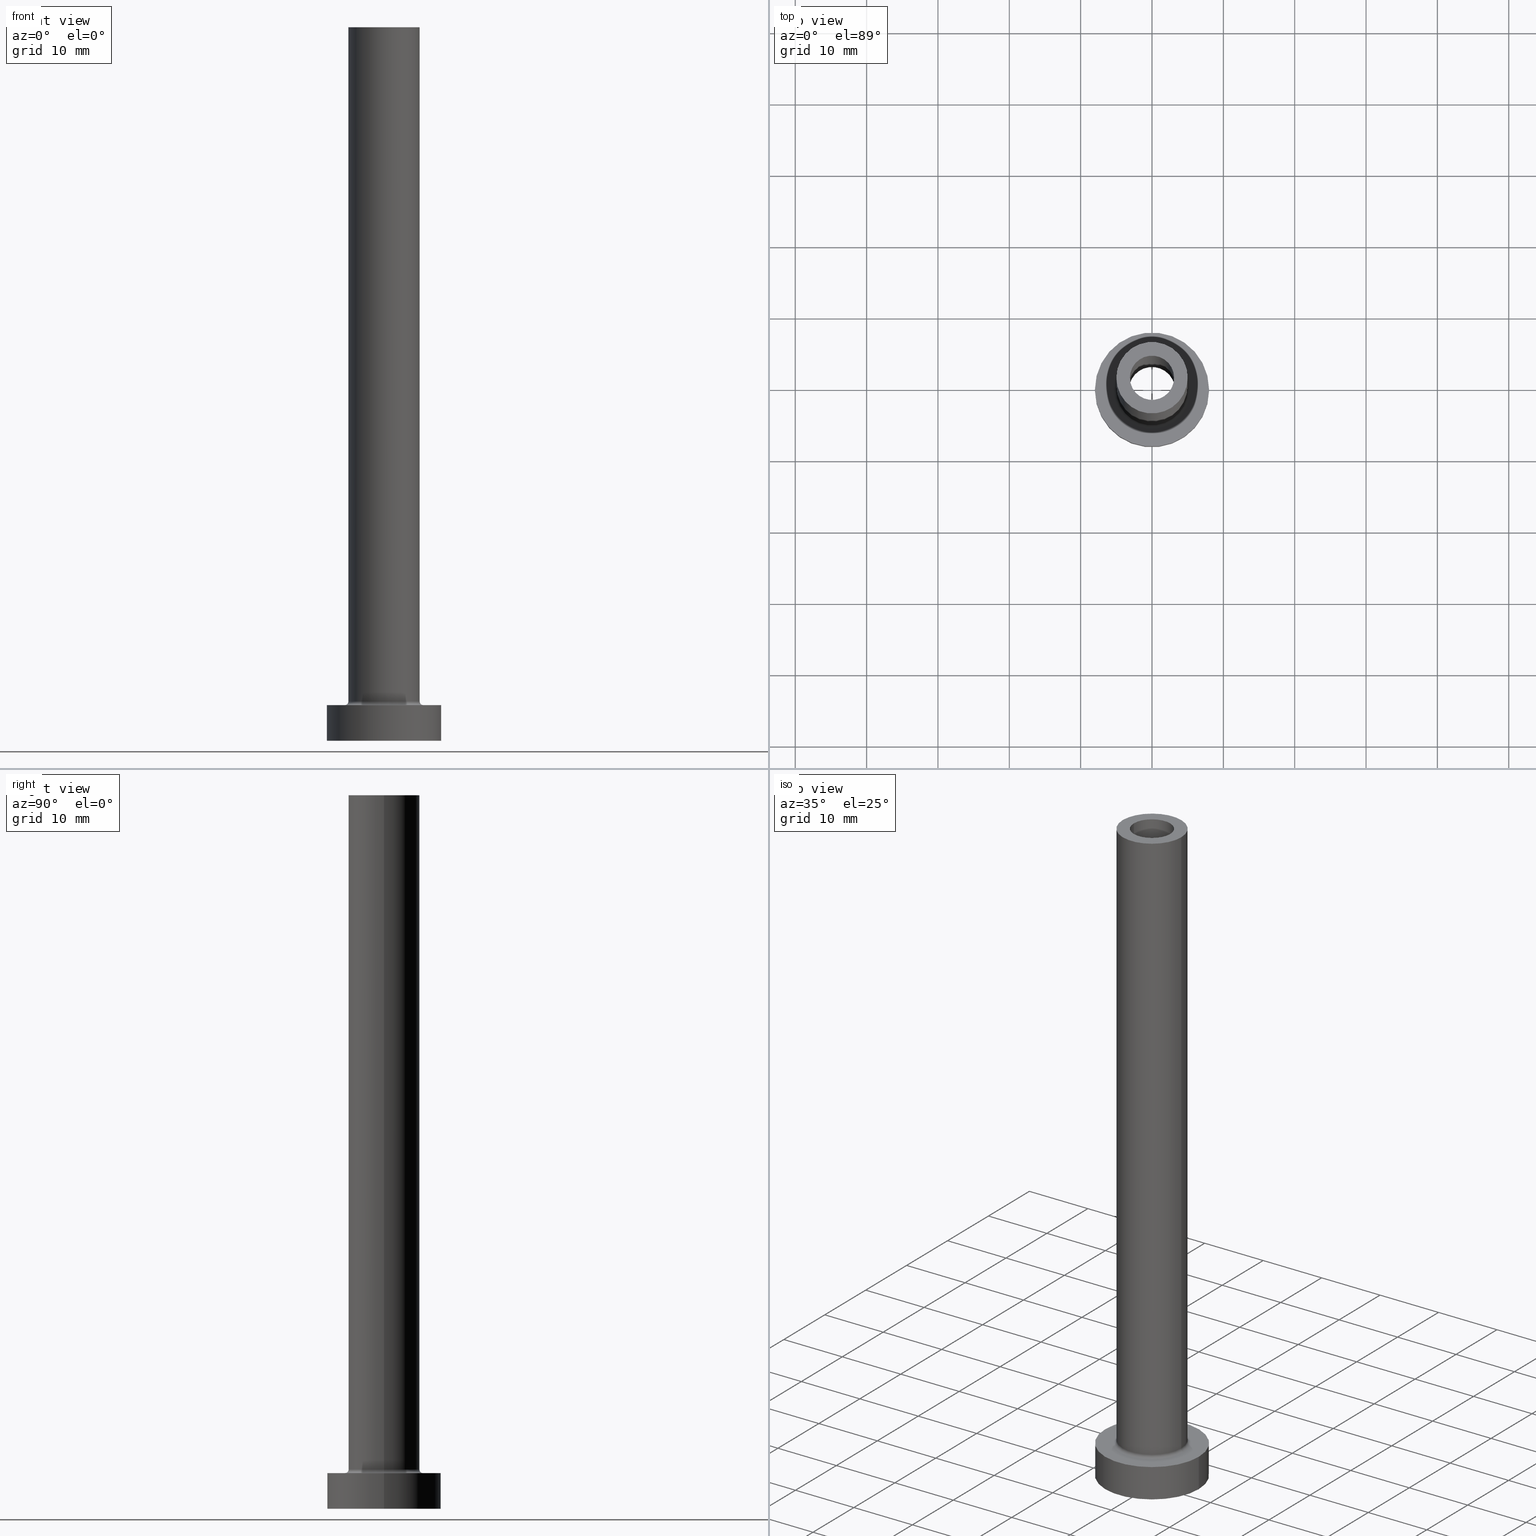
[diagram: canonical four-view strip — front | top / right | iso, engineering-drawing reading convention]
A machine part, canonical four-view strip (front | top / right | iso — engineering-drawing reading convention). The complete STEP part file that produces these views, byte-faithful:
ISO-10303-21;
HEADER;
FILE_DESCRIPTION (( 'STEP AP203' ),
    '1' );
FILE_NAME ('ddac.STEP',
    '2023-02-13T09:13:04',
    ( '' ),
    ( '' ),
    'SwSTEP 2.0',
    'SolidWorks 2019',
    '' );
FILE_SCHEMA (( 'CONFIG_CONTROL_DESIGN' ));
ENDSEC;

DATA;
#1 = ORIENTED_EDGE ( 'NONE', *, *, #399, .F. ) ;
#2 = EDGE_CURVE ( 'NONE', #245, #405, #45, .T. ) ;
#3 = ORIENTED_EDGE ( 'NONE', *, *, #385, .T. ) ;
#4 = EDGE_CURVE ( 'NONE', #33, #114, #303, .T. ) ;
#5 = AXIS2_PLACEMENT_3D ( 'NONE', #148, #439, #8 ) ;
#6 = FACE_OUTER_BOUND ( 'NONE', #132, .T. ) ;
#7 = ORIENTED_EDGE ( 'NONE', *, *, #32, .T. ) ;
#8 = DIRECTION ( 'NONE',  ( 1.000000000000000000, 0.000000000000000000, 0.000000000000000000 ) ) ;
#9 = ORIENTED_EDGE ( 'NONE', *, *, #84, .T. ) ;
#10 = EDGE_CURVE ( 'NONE', #44, #169, #312, .T. ) ;
#11 = DIRECTION ( 'NONE',  ( 0.000000000000000000, 0.000000000000000000, -1.000000000000000000 ) ) ;
#12 =( GEOMETRIC_REPRESENTATION_CONTEXT ( 3 ) GLOBAL_UNCERTAINTY_ASSIGNED_CONTEXT ( ( #452 ) ) GLOBAL_UNIT_ASSIGNED_CONTEXT ( ( #424, #344, #429 ) ) REPRESENTATION_CONTEXT ( 'NONE', 'WORKASPACE' ) );
#13 = CARTESIAN_POINT ( 'NONE',  ( 0.000000000000000000, 0.000000000000000000, 5.000000000000000000 ) ) ;
#14 = CALENDAR_DATE ( 2023, 13, 2 ) ;
#15 = ORIENTED_EDGE ( 'NONE', *, *, #244, .T. ) ;
#16 = CARTESIAN_POINT ( 'NONE',  ( -5.000000000000000000, 0.000000000000000000, 100.0000000000000000 ) ) ;
#17 = DIRECTION ( 'NONE',  ( 1.000000000000000000, 0.000000000000000000, 0.000000000000000000 ) ) ;
#18 = EDGE_LOOP ( 'NONE', ( #279, #242 ) ) ;
#19 = PERSON_AND_ORGANIZATION_ROLE ( 'creator' ) ;
#20 = DIRECTION ( 'NONE',  ( -0.000000000000000000, -0.000000000000000000, -1.000000000000000000 ) ) ;
#21 = AXIS2_PLACEMENT_3D ( 'NONE', #176, #326, #222 ) ;
#22 = CARTESIAN_POINT ( 'NONE',  ( 3.100000000000000089, 3.796405077356793932E-16, 100.0000000000000000 ) ) ;
#23 = DIRECTION ( 'NONE',  ( 1.000000000000000000, 0.000000000000000000, 0.000000000000000000 ) ) ;
#24 = EDGE_CURVE ( 'NONE', #207, #406, #270, .T. ) ;
#25 = ORIENTED_EDGE ( 'NONE', *, *, #106, .F. ) ;
#26 = FACE_OUTER_BOUND ( 'NONE', #227, .T. ) ;
#27 = AXIS2_PLACEMENT_3D ( 'NONE', #428, #205, #346 ) ;
#28 = AXIS2_PLACEMENT_3D ( 'NONE', #119, #191, #230 ) ;
#29 = CARTESIAN_POINT ( 'NONE',  ( -3.250000000000000444, 0.000000000000000000, 55.00000000000000711 ) ) ;
#30 = ORIENTED_EDGE ( 'NONE', *, *, #244, .F. ) ;
#31 = CARTESIAN_POINT ( 'NONE',  ( 0.000000000000000000, 0.000000000000000000, 100.0000000000000000 ) ) ;
#32 = EDGE_CURVE ( 'NONE', #269, #57, #416, .T. ) ;
#33 = VERTEX_POINT ( 'NONE', #83 ) ;
#34 = CC_DESIGN_PERSON_AND_ORGANIZATION_ASSIGNMENT ( #197, #445, ( #438 ) ) ;
#35 = EDGE_LOOP ( 'NONE', ( #81, #150 ) ) ;
#36 = CARTESIAN_POINT ( 'NONE',  ( 0.000000000000000000, 0.000000000000000000, 55.00000000000000711 ) ) ;
#37 = EDGE_CURVE ( 'NONE', #170, #433, #129, .T. ) ;
#38 = DIRECTION ( 'NONE',  ( -1.000000000000000000, 1.224646799147351482E-16, 0.000000000000000000 ) ) ;
#39 = VECTOR ( 'NONE', #199, 1000.000000000000000 ) ;
#40 = LOCAL_TIME ( 10, 13, 4.000000000000000000, #53 ) ;
#41 = ORIENTED_EDGE ( 'NONE', *, *, #322, .F. ) ;
#42 = CARTESIAN_POINT ( 'NONE',  ( -3.100000000000000089, 0.000000000000000000, 55.00000000000000711 ) ) ;
#43 = CARTESIAN_POINT ( 'NONE',  ( -3.250000000000000444, 0.000000000000000000, 0.000000000000000000 ) ) ;
#44 = VERTEX_POINT ( 'NONE', #54 ) ;
#45 = CIRCLE ( 'NONE', #310, 8.000000000000000000 ) ;
#46 = APPLICATION_PROTOCOL_DEFINITION ( 'international standard', 'config_control_design', 1994, #268 ) ;
#47 = AXIS2_PLACEMENT_3D ( 'NONE', #414, #182, #17 ) ;
#48 = CC_DESIGN_SECURITY_CLASSIFICATION ( #192, ( #438 ) ) ;
#49 = DIRECTION ( 'NONE',  ( 0.000000000000000000, 0.000000000000000000, 1.000000000000000000 ) ) ;
#50 = CALENDAR_DATE ( 2023, 13, 2 ) ;
#51 = COORDINATED_UNIVERSAL_TIME_OFFSET ( 1, 0, .AHEAD. ) ;
#52 = VECTOR ( 'NONE', #159, 1000.000000000000000 ) ;
#53 = COORDINATED_UNIVERSAL_TIME_OFFSET ( 1, 0, .AHEAD. ) ;
#54 = CARTESIAN_POINT ( 'NONE',  ( 3.100000000000000089, 3.796405077356793932E-16, 100.0000000000000000 ) ) ;
#55 = APPROVAL_DATE_TIME ( #297, #208 ) ;
#56 = CARTESIAN_POINT ( 'NONE',  ( 0.000000000000000000, 0.000000000000000000, 55.00000000000000711 ) ) ;
#57 = VERTEX_POINT ( 'NONE', #277 ) ;
#58 = LINE ( 'NONE', #126, #142 ) ;
#59 = FACE_OUTER_BOUND ( 'NONE', #349, .T. ) ;
#60 = ORIENTED_EDGE ( 'NONE', *, *, #376, .T. ) ;
#61 = AXIS2_PLACEMENT_3D ( 'NONE', #219, #105, #101 ) ;
#62 = VERTEX_POINT ( 'NONE', #29 ) ;
#63 = CARTESIAN_POINT ( 'NONE',  ( 0.000000000000000000, 0.000000000000000000, 5.000000000000000000 ) ) ;
#64 = DIRECTION ( 'NONE',  ( 0.000000000000000000, 0.000000000000000000, 1.000000000000000000 ) ) ;
#65 = TOROIDAL_SURFACE ( 'NONE', #356, 5.500000000000000000, 0.5000000000000000000 ) ;
#66 = LOCAL_TIME ( 10, 13, 4.000000000000000000, #51 ) ;
#67 = EDGE_CURVE ( 'NONE', #62, #269, #363, .T. ) ;
#68 = DIRECTION ( 'NONE',  ( 0.000000000000000000, 0.000000000000000000, 1.000000000000000000 ) ) ;
#69 = CYLINDRICAL_SURFACE ( 'NONE', #284, 3.250000000000000444 ) ;
#70 = CARTESIAN_POINT ( 'NONE',  ( 0.000000000000000000, 0.000000000000000000, 100.0000000000000000 ) ) ;
#71 = ADVANCED_FACE ( 'NONE', ( #203, #59 ), #451, .T. ) ;
#72 = AXIS2_PLACEMENT_3D ( 'NONE', #353, #254, #237 ) ;
#73 = AXIS2_PLACEMENT_3D ( 'NONE', #443, #379, #161 ) ;
#74 = EDGE_LOOP ( 'NONE', ( #25, #117, #184, #181 ) ) ;
#75 = CC_DESIGN_PERSON_AND_ORGANIZATION_ASSIGNMENT ( #265, #300, ( #320 ) ) ;
#76 = APPROVAL_STATUS ( 'not_yet_approved' ) ;
#77 = CARTESIAN_POINT ( 'NONE',  ( 0.000000000000000000, 0.000000000000000000, 100.0000000000000000 ) ) ;
#78 = AXIS2_PLACEMENT_3D ( 'NONE', #423, #164, #160 ) ;
#79 = PERSON_AND_ORGANIZATION_ROLE ( 'classification_officer' ) ;
#80 = CARTESIAN_POINT ( 'NONE',  ( 5.000000000000000000, 6.123233995736766282E-16, 100.0000000000000000 ) ) ;
#81 = ORIENTED_EDGE ( 'NONE', *, *, #352, .T. ) ;
#82 = FACE_OUTER_BOUND ( 'NONE', #434, .T. ) ;
#83 = CARTESIAN_POINT ( 'NONE',  ( -3.100000000000000089, 0.000000000000000000, 100.0000000000000000 ) ) ;
#84 = EDGE_CURVE ( 'NONE', #57, #389, #216, .T. ) ;
#85 = ORIENTED_EDGE ( 'NONE', *, *, #291, .F. ) ;
#86 = CIRCLE ( 'NONE', #283, 3.250000000000000444 ) ;
#87 = SHAPE_DEFINITION_REPRESENTATION ( #390, #96 ) ;
#88 = CARTESIAN_POINT ( 'NONE',  ( -5.000000000000000000, 0.000000000000000000, 100.0000000000000000 ) ) ;
#89 = PERSON_AND_ORGANIZATION_ROLE ( 'creator' ) ;
#90 = CARTESIAN_POINT ( 'NONE',  ( 0.000000000000000000, 0.000000000000000000, 5.000000000000000000 ) ) ;
#91 = DIRECTION ( 'NONE',  ( 0.000000000000000000, 0.000000000000000000, -1.000000000000000000 ) ) ;
#92 = VERTEX_POINT ( 'NONE', #308 ) ;
#93 = DIRECTION ( 'NONE',  ( 1.000000000000000000, 0.000000000000000000, -0.000000000000000000 ) ) ;
#94 = ORIENTED_EDGE ( 'NONE', *, *, #220, .F. ) ;
#95 = CIRCLE ( 'NONE', #162, 8.000000000000000000 ) ;
#96 = ADVANCED_BREP_SHAPE_REPRESENTATION ( 'ddac', ( #158, #28 ), #12 ) ;
#97 = ORIENTED_EDGE ( 'NONE', *, *, #2, .T. ) ;
#98 = ORIENTED_EDGE ( 'NONE', *, *, #330, .T. ) ;
#99 = FACE_OUTER_BOUND ( 'NONE', #210, .T. ) ;
#100 = EDGE_CURVE ( 'NONE', #193, #316, #189, .T. ) ;
#101 = DIRECTION ( 'NONE',  ( 1.000000000000000000, 0.000000000000000000, 0.000000000000000000 ) ) ;
#102 = AXIS2_PLACEMENT_3D ( 'NONE', #31, #461, #93 ) ;
#103 = CC_DESIGN_APPROVAL ( #190, ( #192 ) ) ;
#104 = CARTESIAN_POINT ( 'NONE',  ( 0.000000000000000000, 0.000000000000000000, 5.000000000000000000 ) ) ;
#105 = DIRECTION ( 'NONE',  ( -0.000000000000000000, -0.000000000000000000, -1.000000000000000000 ) ) ;
#106 = EDGE_CURVE ( 'NONE', #207, #170, #235, .T. ) ;
#107 = DIRECTION ( 'NONE',  ( 0.000000000000000000, 0.000000000000000000, -1.000000000000000000 ) ) ;
#108 = EDGE_CURVE ( 'NONE', #140, #92, #387, .T. ) ;
#109 = AXIS2_PLACEMENT_3D ( 'NONE', #407, #49, #411 ) ;
#110 = ORIENTED_EDGE ( 'NONE', *, *, #229, .F. ) ;
#111 = DIRECTION ( 'NONE',  ( -0.000000000000000000, -0.000000000000000000, -1.000000000000000000 ) ) ;
#112 = CARTESIAN_POINT ( 'NONE',  ( -5.500000000000000000, 6.735557395310442023E-16, 5.000000000000002665 ) ) ;
#113 = EDGE_CURVE ( 'NONE', #405, #140, #301, .T. ) ;
#114 = VERTEX_POINT ( 'NONE', #42 ) ;
#115 = PLANE ( 'NONE',  #73 ) ;
#116 = CIRCLE ( 'NONE', #21, 8.000000000000000000 ) ;
#117 = ORIENTED_EDGE ( 'NONE', *, *, #24, .T. ) ;
#118 = CYLINDRICAL_SURFACE ( 'NONE', #334, 8.000000000000000000 ) ;
#119 = CARTESIAN_POINT ( 'NONE',  ( 0.000000000000000000, 0.000000000000000000, 0.000000000000000000 ) ) ;
#120 = ORIENTED_EDGE ( 'NONE', *, *, #32, .F. ) ;
#121 = CALENDAR_DATE ( 2023, 13, 2 ) ;
#122 = DIRECTION ( 'NONE',  ( 1.000000000000000000, 0.000000000000000000, -0.000000000000000000 ) ) ;
#123 = APPROVAL_DATE_TIME ( #421, #190 ) ;
#124 = DIRECTION ( 'NONE',  ( 1.000000000000000000, 0.000000000000000000, 0.000000000000000000 ) ) ;
#125 = APPROVAL_ROLE ( '' ) ;
#126 = CARTESIAN_POINT ( 'NONE',  ( -3.250000000000000444, 0.000000000000000000, 64.19238815542512100 ) ) ;
#127 = CC_DESIGN_PERSON_AND_ORGANIZATION_ASSIGNMENT ( #410, #79, ( #192 ) ) ;
#128 = CIRCLE ( 'NONE', #288, 3.100000000000000089 ) ;
#129 = LINE ( 'NONE', #88, #39 ) ;
#130 = AXIS2_PLACEMENT_3D ( 'NONE', #215, #354, #299 ) ;
#131 = DIRECTION ( 'NONE',  ( 0.000000000000000000, 0.000000000000000000, -1.000000000000000000 ) ) ;
#132 = EDGE_LOOP ( 'NONE', ( #243, #7, #9, #281 ) ) ;
#133 = EDGE_LOOP ( 'NONE', ( #415, #1, #336, #313 ) ) ;
#134 = CIRCLE ( 'NONE', #171, 5.000000000000000000 ) ;
#135 = ORIENTED_EDGE ( 'NONE', *, *, #113, .T. ) ;
#136 = PLANE ( 'NONE',  #275 ) ;
#137 = FACE_BOUND ( 'NONE', #35, .T. ) ;
#138 = VECTOR ( 'NONE', #144, 1000.000000000000000 ) ;
#139 = LOCAL_TIME ( 10, 13, 4.000000000000000000, #276 ) ;
#140 = VERTEX_POINT ( 'NONE', #141 ) ;
#141 = CARTESIAN_POINT ( 'NONE',  ( -8.000000000000000000, 0.000000000000000000, 0.000000000000000000 ) ) ;
#142 = VECTOR ( 'NONE', #339, 1000.000000000000000 ) ;
#143 = ORIENTED_EDGE ( 'NONE', *, *, #100, .F. ) ;
#144 = DIRECTION ( 'NONE',  ( -0.000000000000000000, -0.000000000000000000, -1.000000000000000000 ) ) ;
#145 = EDGE_CURVE ( 'NONE', #92, #140, #116, .T. ) ;
#146 = DATE_AND_TIME ( #14, #66 ) ;
#147 = CARTESIAN_POINT ( 'NONE',  ( -8.000000000000000000, 0.000000000000000000, 5.000000000000000000 ) ) ;
#148 = CARTESIAN_POINT ( 'NONE',  ( 0.000000000000000000, 0.000000000000000000, 5.000000000000000000 ) ) ;
#149 = APPLICATION_PROTOCOL_DEFINITION ( 'international standard', 'config_control_design', 1994, #278 ) ;
#150 = ORIENTED_EDGE ( 'NONE', *, *, #413, .T. ) ;
#151 = CIRCLE ( 'NONE', #374, 5.000000000000000000 ) ;
#152 = ADVANCED_FACE ( 'NONE', ( #266 ), #368, .T. ) ;
#153 = ORIENTED_EDGE ( 'NONE', *, *, #229, .T. ) ;
#154 = DIRECTION ( 'NONE',  ( 0.000000000000000000, 0.000000000000000000, 1.000000000000000000 ) ) ;
#155 = APPROVAL_STATUS ( 'not_yet_approved' ) ;
#156 = PRODUCT_RELATED_PRODUCT_CATEGORY ( 'detail', '', ( #320 ) ) ;
#157 = DIRECTION ( 'NONE',  ( -0.000000000000000000, -0.000000000000000000, -1.000000000000000000 ) ) ;
#158 = MANIFOLD_SOLID_BREP ( 'Odebrat vysunut�m4', #248 ) ;
#159 = DIRECTION ( 'NONE',  ( 0.000000000000000000, 0.000000000000000000, -1.000000000000000000 ) ) ;
#160 = DIRECTION ( 'NONE',  ( 0.000000000000000000, 0.000000000000000000, -1.000000000000000000 ) ) ;
#161 = DIRECTION ( 'NONE',  ( 1.000000000000000000, 0.000000000000000000, -0.000000000000000000 ) ) ;
#162 = AXIS2_PLACEMENT_3D ( 'NONE', #104, #211, #440 ) ;
#163 = EDGE_LOOP ( 'NONE', ( #384, #345 ) ) ;
#164 = DIRECTION ( 'NONE',  ( 0.000000000000000000, -1.000000000000000000, 0.000000000000000000 ) ) ;
#165 = ADVANCED_FACE ( 'NONE', ( #329 ), #328, .F. ) ;
#166 = EDGE_LOOP ( 'NONE', ( #60, #195 ) ) ;
#167 = CARTESIAN_POINT ( 'NONE',  ( 0.000000000000000000, 0.000000000000000000, 55.00000000000000711 ) ) ;
#168 = ORIENTED_EDGE ( 'NONE', *, *, #108, .F. ) ;
#169 = VERTEX_POINT ( 'NONE', #444 ) ;
#170 = VERTEX_POINT ( 'NONE', #16 ) ;
#171 = AXIS2_PLACEMENT_3D ( 'NONE', #358, #175, #401 ) ;
#172 = DIRECTION ( 'NONE',  ( -1.000000000000000000, 0.000000000000000000, 0.000000000000000000 ) ) ;
#173 = AXIS2_PLACEMENT_3D ( 'NONE', #262, #11, #364 ) ;
#174 = CC_DESIGN_PERSON_AND_ORGANIZATION_ASSIGNMENT ( #194, #89, ( #438 ) ) ;
#175 = DIRECTION ( 'NONE',  ( 0.000000000000000000, 0.000000000000000000, 1.000000000000000000 ) ) ;
#176 = CARTESIAN_POINT ( 'NONE',  ( 0.000000000000000000, 0.000000000000000000, 0.000000000000000000 ) ) ;
#177 = ADVANCED_FACE ( 'NONE', ( #293 ), #224, .T. ) ;
#178 = FACE_OUTER_BOUND ( 'NONE', #218, .T. ) ;
#179 = AXIS2_PLACEMENT_3D ( 'NONE', #412, #357, #391 ) ;
#180 = LOCAL_TIME ( 10, 13, 4.000000000000000000, #228 ) ;
#181 = ORIENTED_EDGE ( 'NONE', *, *, #37, .F. ) ;
#182 = DIRECTION ( 'NONE',  ( 0.000000000000000000, 0.000000000000000000, 1.000000000000000000 ) ) ;
#183 = DIRECTION ( 'NONE',  ( 0.000000000000000000, 0.000000000000000000, 1.000000000000000000 ) ) ;
#184 = ORIENTED_EDGE ( 'NONE', *, *, #232, .T. ) ;
#185 = ADVANCED_FACE ( 'NONE', ( #82 ), #432, .F. ) ;
#186 = PERSON_AND_ORGANIZATION ( #271, #217 ) ;
#187 = DIRECTION ( 'NONE',  ( 0.000000000000000000, 0.000000000000000000, 1.000000000000000000 ) ) ;
#188 = DIRECTION ( 'NONE',  ( 1.000000000000000000, 0.000000000000000000, 0.000000000000000000 ) ) ;
#189 = CIRCLE ( 'NONE', #351, 5.500000000000000000 ) ;
#190 = APPROVAL ( #155, 'NEUR�EN�' ) ;
#191 = DIRECTION ( 'NONE',  ( 0.000000000000000000, 0.000000000000000000, 1.000000000000000000 ) ) ;
#192 = SECURITY_CLASSIFICATION ( '', '', #261 ) ;
#193 = VERTEX_POINT ( 'NONE', #112 ) ;
#194 = PERSON_AND_ORGANIZATION ( #271, #217 ) ;
#195 = ORIENTED_EDGE ( 'NONE', *, *, #100, .T. ) ;
#196 = DIRECTION ( 'NONE',  ( 1.000000000000000000, 0.000000000000000000, 0.000000000000000000 ) ) ;
#197 = PERSON_AND_ORGANIZATION ( #271, #217 ) ;
#198 = DATE_TIME_ROLE ( 'classification_date' ) ;
#199 = DIRECTION ( 'NONE',  ( -0.000000000000000000, -0.000000000000000000, -1.000000000000000000 ) ) ;
#200 = ORIENTED_EDGE ( 'NONE', *, *, #232, .F. ) ;
#201 = DIRECTION ( 'NONE',  ( 0.000000000000000000, 0.000000000000000000, 1.000000000000000000 ) ) ;
#202 = CIRCLE ( 'NONE', #5, 5.500000000000000000 ) ;
#203 = FACE_BOUND ( 'NONE', #166, .T. ) ;
#204 = CIRCLE ( 'NONE', #130, 3.100000000000000089 ) ;
#205 = DIRECTION ( 'NONE',  ( 0.000000000000000000, 0.000000000000000000, -1.000000000000000000 ) ) ;
#206 = ORIENTED_EDGE ( 'NONE', *, *, #352, .F. ) ;
#207 = VERTEX_POINT ( 'NONE', #80 ) ;
#208 = APPROVAL ( #338, 'NEUR�EN�' ) ;
#209 = AXIS2_PLACEMENT_3D ( 'NONE', #77, #298, #361 ) ;
#210 = EDGE_LOOP ( 'NONE', ( #94, #153, #221, #260 ) ) ;
#211 = DIRECTION ( 'NONE',  ( 0.000000000000000000, 0.000000000000000000, 1.000000000000000000 ) ) ;
#212 = DIRECTION ( 'NONE',  ( 1.000000000000000000, 0.000000000000000000, 0.000000000000000000 ) ) ;
#213 = CARTESIAN_POINT ( 'NONE',  ( 5.000000000000000000, 6.123233995736766282E-16, 5.500000000000005329 ) ) ;
#214 = FACE_OUTER_BOUND ( 'NONE', #285, .T. ) ;
#215 = CARTESIAN_POINT ( 'NONE',  ( 0.000000000000000000, 0.000000000000000000, 55.00000000000000711 ) ) ;
#216 = CIRCLE ( 'NONE', #448, 3.250000000000000444 ) ;
#217 = ORGANIZATION ( 'NEUR�EN�', 'NEUR�EN�', '' ) ;
#218 = EDGE_LOOP ( 'NONE', ( #85, #30, #135, #321 ) ) ;
#219 = CARTESIAN_POINT ( 'NONE',  ( 0.000000000000000000, 0.000000000000000000, 0.000000000000000000 ) ) ;
#220 = EDGE_CURVE ( 'NONE', #433, #406, #441, .T. ) ;
#221 = ORIENTED_EDGE ( 'NONE', *, *, #376, .F. ) ;
#222 = DIRECTION ( 'NONE',  ( 1.000000000000000000, 0.000000000000000000, 0.000000000000000000 ) ) ;
#223 = DIRECTION ( 'NONE',  ( 1.000000000000000000, 0.000000000000000000, 0.000000000000000000 ) ) ;
#224 = CYLINDRICAL_SURFACE ( 'NONE', #404, 8.000000000000000000 ) ;
#225 = VECTOR ( 'NONE', #236, 1000.000000000000000 ) ;
#226 = CALENDAR_DATE ( 2023, 13, 2 ) ;
#227 = EDGE_LOOP ( 'NONE', ( #430, #393, #206, #369 ) ) ;
#228 = COORDINATED_UNIVERSAL_TIME_OFFSET ( 1, 0, .AHEAD. ) ;
#229 = EDGE_CURVE ( 'NONE', #433, #193, #319, .T. ) ;
#230 = DIRECTION ( 'NONE',  ( 1.000000000000000000, 0.000000000000000000, 0.000000000000000000 ) ) ;
#231 = EDGE_LOOP ( 'NONE', ( #359, #233 ) ) ;
#232 = EDGE_CURVE ( 'NONE', #406, #433, #151, .T. ) ;
#233 = ORIENTED_EDGE ( 'NONE', *, *, #84, .F. ) ;
#234 = CARTESIAN_POINT ( 'NONE',  ( 0.000000000000000000, 0.000000000000000000, 55.00000000000000711 ) ) ;
#235 = CIRCLE ( 'NONE', #457, 5.000000000000000000 ) ;
#236 = DIRECTION ( 'NONE',  ( -0.000000000000000000, -0.000000000000000000, -1.000000000000000000 ) ) ;
#237 = DIRECTION ( 'NONE',  ( -1.000000000000000000, 0.000000000000000000, 0.000000000000000000 ) ) ;
#238 = ADVANCED_FACE ( 'NONE', ( #137, #350 ), #136, .F. ) ;
#239 = ORIENTED_EDGE ( 'NONE', *, *, #322, .T. ) ;
#240 = FACE_BOUND ( 'NONE', #163, .T. ) ;
#241 = ORIENTED_EDGE ( 'NONE', *, *, #113, .F. ) ;
#242 = ORIENTED_EDGE ( 'NONE', *, *, #106, .T. ) ;
#243 = ORIENTED_EDGE ( 'NONE', *, *, #67, .T. ) ;
#244 = EDGE_CURVE ( 'NONE', #405, #245, #95, .T. ) ;
#245 = VERTEX_POINT ( 'NONE', #252 ) ;
#246 = ORIENTED_EDGE ( 'NONE', *, *, #145, .T. ) ;
#247 = CARTESIAN_POINT ( 'NONE',  ( 3.250000000000000444, 3.980102097228898231E-16, 55.00000000000000711 ) ) ;
#248 = CLOSED_SHELL ( 'NONE', ( #287, #251, #274, #392, #177, #355, #71, #425, #152, #337, #185, #280, #238, #165 ) ) ;
#249 = CIRCLE ( 'NONE', #78, 0.5000000000000004441 ) ;
#250 = DIRECTION ( 'NONE',  ( -0.000000000000000000, -0.000000000000000000, -1.000000000000000000 ) ) ;
#251 = ADVANCED_FACE ( 'NONE', ( #6 ), #69, .F. ) ;
#252 = CARTESIAN_POINT ( 'NONE',  ( 8.000000000000000000, 9.797174393178825657E-16, 5.000000000000000000 ) ) ;
#253 = DIRECTION ( 'NONE',  ( -1.000000000000000000, 0.000000000000000000, 0.000000000000000000 ) ) ;
#254 = DIRECTION ( 'NONE',  ( 0.000000000000000000, 0.000000000000000000, -1.000000000000000000 ) ) ;
#255 = ORIENTED_EDGE ( 'NONE', *, *, #4, .T. ) ;
#256 = AXIS2_PLACEMENT_3D ( 'NONE', #422, #380, #122 ) ;
#257 = ORIENTED_EDGE ( 'NONE', *, *, #10, .F. ) ;
#258 = DIRECTION ( 'NONE',  ( -1.000000000000000000, 0.000000000000000000, 0.000000000000000000 ) ) ;
#259 = PERSON_AND_ORGANIZATION ( #271, #217 ) ;
#260 = ORIENTED_EDGE ( 'NONE', *, *, #330, .F. ) ;
#261 = SECURITY_CLASSIFICATION_LEVEL ( 'unclassified' ) ;
#262 = CARTESIAN_POINT ( 'NONE',  ( 0.000000000000000000, 0.000000000000000000, 100.0000000000000000 ) ) ;
#263 = CIRCLE ( 'NONE', #61, 3.250000000000000444 ) ;
#264 = APPROVAL_PERSON_ORGANIZATION ( #453, #208, #125 ) ;
#265 = PERSON_AND_ORGANIZATION ( #271, #217 ) ;
#266 = FACE_OUTER_BOUND ( 'NONE', #133, .T. ) ;
#267 = DIRECTION ( 'NONE',  ( -0.000000000000000000, -0.000000000000000000, -1.000000000000000000 ) ) ;
#268 = APPLICATION_CONTEXT ( 'configuration controlled 3d designs of mechanical parts and assemblies' ) ;
#269 = VERTEX_POINT ( 'NONE', #247 ) ;
#270 = LINE ( 'NONE', #377, #225 ) ;
#271 = PERSON ( 'NEUR�EN�', 'NEUR�EN�', 'NEUR�EN�', ('NEUR�EN�'), ('NEUR�EN�'), ('NEUR�EN�') ) ;
#272 = CARTESIAN_POINT ( 'NONE',  ( 0.000000000000000000, 0.000000000000000000, 0.000000000000000000 ) ) ;
#273 = CARTESIAN_POINT ( 'NONE',  ( 0.000000000000000000, 0.000000000000000000, 100.0000000000000000 ) ) ;
#274 = ADVANCED_FACE ( 'NONE', ( #99 ), #65, .F. ) ;
#275 = AXIS2_PLACEMENT_3D ( 'NONE', #36, #64, #289 ) ;
#276 = COORDINATED_UNIVERSAL_TIME_OFFSET ( 1, 0, .AHEAD. ) ;
#277 = CARTESIAN_POINT ( 'NONE',  ( 3.250000000000000444, 3.980102097228898231E-16, 0.000000000000000000 ) ) ;
#278 = APPLICATION_CONTEXT ( 'configuration controlled 3d designs of mechanical parts and assemblies' ) ;
#279 = ORIENTED_EDGE ( 'NONE', *, *, #399, .T. ) ;
#280 = ADVANCED_FACE ( 'NONE', ( #214 ), #323, .F. ) ;
#281 = ORIENTED_EDGE ( 'NONE', *, *, #315, .F. ) ;
#282 = DIRECTION ( 'NONE',  ( 1.000000000000000000, 0.000000000000000000, 0.000000000000000000 ) ) ;
#283 = AXIS2_PLACEMENT_3D ( 'NONE', #56, #201, #282 ) ;
#284 = AXIS2_PLACEMENT_3D ( 'NONE', #435, #107, #172 ) ;
#285 = EDGE_LOOP ( 'NONE', ( #120, #239, #318, #3 ) ) ;
#286 = CARTESIAN_POINT ( 'NONE',  ( 0.000000000000000000, 0.000000000000000000, 5.500000000000005329 ) ) ;
#287 = ADVANCED_FACE ( 'NONE', ( #26 ), #386, .F. ) ;
#288 = AXIS2_PLACEMENT_3D ( 'NONE', #273, #183, #456 ) ;
#289 = DIRECTION ( 'NONE',  ( 1.000000000000000000, 0.000000000000000000, -0.000000000000000000 ) ) ;
#290 = FACE_OUTER_BOUND ( 'NONE', #74, .T. ) ;
#291 = EDGE_CURVE ( 'NONE', #245, #92, #382, .T. ) ;
#292 = VECTOR ( 'NONE', #455, 1000.000000000000000 ) ;
#293 = FACE_OUTER_BOUND ( 'NONE', #296, .T. ) ;
#294 = CC_DESIGN_PERSON_AND_ORGANIZATION_ASSIGNMENT ( #259, #19, ( #317 ) ) ;
#295 = FACE_OUTER_BOUND ( 'NONE', #342, .T. ) ;
#296 = EDGE_LOOP ( 'NONE', ( #427, #449, #246, #241 ) ) ;
#297 = DATE_AND_TIME ( #418, #420 ) ;
#298 = DIRECTION ( 'NONE',  ( -0.000000000000000000, -0.000000000000000000, -1.000000000000000000 ) ) ;
#299 = DIRECTION ( 'NONE',  ( 1.000000000000000000, 0.000000000000000000, 0.000000000000000000 ) ) ;
#300 = PERSON_AND_ORGANIZATION_ROLE ( 'design_owner' ) ;
#301 = LINE ( 'NONE', #147, #138 ) ;
#302 = AXIS2_PLACEMENT_3D ( 'NONE', #234, #383, #196 ) ;
#303 = LINE ( 'NONE', #341, #395 ) ;
#304 = EDGE_LOOP ( 'NONE', ( #257, #388, #255, #381 ) ) ;
#305 = CARTESIAN_POINT ( 'NONE',  ( 0.000000000000000000, 0.000000000000000000, 100.0000000000000000 ) ) ;
#306 = EDGE_CURVE ( 'NONE', #33, #44, #128, .T. ) ;
#307 = PERSON_AND_ORGANIZATION ( #271, #217 ) ;
#308 = CARTESIAN_POINT ( 'NONE',  ( 8.000000000000000000, 9.797174393178825657E-16, 0.000000000000000000 ) ) ;
#309 = CARTESIAN_POINT ( 'NONE',  ( 8.000000000000000000, 9.797174393178825657E-16, 5.000000000000000000 ) ) ;
#310 = AXIS2_PLACEMENT_3D ( 'NONE', #63, #187, #460 ) ;
#311 = AXIS2_PLACEMENT_3D ( 'NONE', #394, #397, #38 ) ;
#312 = LINE ( 'NONE', #22, #52 ) ;
#313 = ORIENTED_EDGE ( 'NONE', *, *, #220, .T. ) ;
#314 = PLANE ( 'NONE',  #102 ) ;
#315 = EDGE_CURVE ( 'NONE', #62, #389, #58, .T. ) ;
#316 = VERTEX_POINT ( 'NONE', #378 ) ;
#317 = PRODUCT_DEFINITION ( 'NEZN�M�', '', #438, #367 ) ;
#318 = ORIENTED_EDGE ( 'NONE', *, *, #315, .T. ) ;
#319 = CIRCLE ( 'NONE', #311, 0.5000000000000004441 ) ;
#320 = PRODUCT ( 'ddac', 'ddac', '', ( #362 ) ) ;
#321 = ORIENTED_EDGE ( 'NONE', *, *, #108, .T. ) ;
#322 = EDGE_CURVE ( 'NONE', #269, #62, #86, .T. ) ;
#323 = CYLINDRICAL_SURFACE ( 'NONE', #72, 3.250000000000000444 ) ;
#324 = CIRCLE ( 'NONE', #47, 3.100000000000000089 ) ;
#325 = CARTESIAN_POINT ( 'NONE',  ( 0.000000000000000000, 0.000000000000000000, 5.500000000000005329 ) ) ;
#326 = DIRECTION ( 'NONE',  ( 0.000000000000000000, 0.000000000000000000, 1.000000000000000000 ) ) ;
#327 = VECTOR ( 'NONE', #91, 1000.000000000000000 ) ;
#328 = CYLINDRICAL_SURFACE ( 'NONE', #173, 3.100000000000000089 ) ;
#329 = FACE_OUTER_BOUND ( 'NONE', #304, .T. ) ;
#330 = EDGE_CURVE ( 'NONE', #406, #316, #249, .T. ) ;
#331 = APPROVAL_ROLE ( '' ) ;
#332 = APPROVAL_ROLE ( '' ) ;
#333 = CARTESIAN_POINT ( 'NONE',  ( 0.000000000000000000, 0.000000000000000000, 0.000000000000000000 ) ) ;
#334 = AXIS2_PLACEMENT_3D ( 'NONE', #408, #267, #365 ) ;
#335 = CC_DESIGN_APPROVAL ( #402, ( #317 ) ) ;
#336 = ORIENTED_EDGE ( 'NONE', *, *, #37, .T. ) ;
#337 = ADVANCED_FACE ( 'NONE', ( #240, #431 ), #314, .T. ) ;
#338 = APPROVAL_STATUS ( 'not_yet_approved' ) ;
#339 = DIRECTION ( 'NONE',  ( 0.000000000000000000, 0.000000000000000000, -1.000000000000000000 ) ) ;
#340 = DATE_AND_TIME ( #50, #180 ) ;
#341 = CARTESIAN_POINT ( 'NONE',  ( -3.100000000000000089, 0.000000000000000000, 100.0000000000000000 ) ) ;
#342 = EDGE_LOOP ( 'NONE', ( #168, #360 ) ) ;
#343 = CIRCLE ( 'NONE', #409, 3.100000000000000089 ) ;
#344 =( NAMED_UNIT ( * ) PLANE_ANGLE_UNIT ( ) SI_UNIT ( $, .RADIAN. ) );
#345 = ORIENTED_EDGE ( 'NONE', *, *, #371, .F. ) ;
#346 = DIRECTION ( 'NONE',  ( -1.000000000000000000, 0.000000000000000000, 0.000000000000000000 ) ) ;
#347 = ORIENTED_EDGE ( 'NONE', *, *, #67, .F. ) ;
#348 = DIRECTION ( 'NONE',  ( 0.000000000000000000, 0.000000000000000000, 1.000000000000000000 ) ) ;
#349 = EDGE_LOOP ( 'NONE', ( #15, #97 ) ) ;
#350 = FACE_OUTER_BOUND ( 'NONE', #442, .T. ) ;
#351 = AXIS2_PLACEMENT_3D ( 'NONE', #90, #157, #372 ) ;
#352 = EDGE_CURVE ( 'NONE', #114, #169, #343, .T. ) ;
#353 = CARTESIAN_POINT ( 'NONE',  ( 0.000000000000000000, 0.000000000000000000, 64.19238815542512100 ) ) ;
#354 = DIRECTION ( 'NONE',  ( 0.000000000000000000, 0.000000000000000000, 1.000000000000000000 ) ) ;
#355 = ADVANCED_FACE ( 'NONE', ( #178 ), #118, .T. ) ;
#356 = AXIS2_PLACEMENT_3D ( 'NONE', #286, #400, #437 ) ;
#357 = DIRECTION ( 'NONE',  ( 0.000000000000000000, 0.000000000000000000, 1.000000000000000000 ) ) ;
#358 = CARTESIAN_POINT ( 'NONE',  ( 0.000000000000000000, 0.000000000000000000, 100.0000000000000000 ) ) ;
#359 = ORIENTED_EDGE ( 'NONE', *, *, #385, .F. ) ;
#360 = ORIENTED_EDGE ( 'NONE', *, *, #145, .F. ) ;
#361 = DIRECTION ( 'NONE',  ( -1.000000000000000000, 0.000000000000000000, 0.000000000000000000 ) ) ;
#362 = MECHANICAL_CONTEXT ( 'NONE', #278, 'mechanical' ) ;
#363 = CIRCLE ( 'NONE', #302, 3.250000000000000444 ) ;
#364 = DIRECTION ( 'NONE',  ( -1.000000000000000000, 0.000000000000000000, 0.000000000000000000 ) ) ;
#365 = DIRECTION ( 'NONE',  ( -1.000000000000000000, 0.000000000000000000, 0.000000000000000000 ) ) ;
#366 = APPROVAL_PERSON_ORGANIZATION ( #186, #402, #332 ) ;
#367 = DESIGN_CONTEXT ( 'detailed design', #268, 'design' ) ;
#368 = CYLINDRICAL_SURFACE ( 'NONE', #209, 5.000000000000000000 ) ;
#369 = ORIENTED_EDGE ( 'NONE', *, *, #4, .F. ) ;
#370 = DATE_AND_TIME ( #226, #40 ) ;
#371 = EDGE_CURVE ( 'NONE', #44, #33, #324, .T. ) ;
#372 = DIRECTION ( 'NONE',  ( 1.000000000000000000, 0.000000000000000000, 0.000000000000000000 ) ) ;
#373 = COORDINATED_UNIVERSAL_TIME_OFFSET ( 1, 0, .AHEAD. ) ;
#374 = AXIS2_PLACEMENT_3D ( 'NONE', #325, #68, #212 ) ;
#375 = AXIS2_PLACEMENT_3D ( 'NONE', #70, #250, #253 ) ;
#376 = EDGE_CURVE ( 'NONE', #316, #193, #202, .T. ) ;
#377 = CARTESIAN_POINT ( 'NONE',  ( 5.000000000000000000, 6.123233995736766282E-16, 100.0000000000000000 ) ) ;
#378 = CARTESIAN_POINT ( 'NONE',  ( 5.500000000000000000, 0.000000000000000000, 5.000000000000002665 ) ) ;
#379 = DIRECTION ( 'NONE',  ( 0.000000000000000000, 0.000000000000000000, 1.000000000000000000 ) ) ;
#380 = DIRECTION ( 'NONE',  ( 0.000000000000000000, 0.000000000000000000, 1.000000000000000000 ) ) ;
#381 = ORIENTED_EDGE ( 'NONE', *, *, #413, .F. ) ;
#382 = LINE ( 'NONE', #309, #292 ) ;
#383 = DIRECTION ( 'NONE',  ( 0.000000000000000000, 0.000000000000000000, 1.000000000000000000 ) ) ;
#384 = ORIENTED_EDGE ( 'NONE', *, *, #306, .F. ) ;
#385 = EDGE_CURVE ( 'NONE', #389, #57, #263, .T. ) ;
#386 = CYLINDRICAL_SURFACE ( 'NONE', #27, 3.100000000000000089 ) ;
#387 = CIRCLE ( 'NONE', #419, 8.000000000000000000 ) ;
#388 = ORIENTED_EDGE ( 'NONE', *, *, #371, .T. ) ;
#389 = VERTEX_POINT ( 'NONE', #43 ) ;
#390 = PRODUCT_DEFINITION_SHAPE ( 'NONE', 'NONE',  #317 ) ;
#391 = DIRECTION ( 'NONE',  ( 1.000000000000000000, 0.000000000000000000, 0.000000000000000000 ) ) ;
#392 = ADVANCED_FACE ( 'NONE', ( #290 ), #403, .T. ) ;
#393 = ORIENTED_EDGE ( 'NONE', *, *, #10, .T. ) ;
#394 = CARTESIAN_POINT ( 'NONE',  ( -5.500000000000000000, 6.735557395310442023E-16, 5.500000000000005329 ) ) ;
#395 = VECTOR ( 'NONE', #131, 1000.000000000000000 ) ;
#396 = CC_DESIGN_APPROVAL ( #208, ( #438 ) ) ;
#397 = DIRECTION ( 'NONE',  ( 1.224646799147353207E-16, 1.000000000000000000, -0.000000000000000000 ) ) ;
#398 = CARTESIAN_POINT ( 'NONE',  ( -8.000000000000000000, 0.000000000000000000, 5.000000000000000000 ) ) ;
#399 = EDGE_CURVE ( 'NONE', #170, #207, #134, .T. ) ;
#400 = DIRECTION ( 'NONE',  ( 0.000000000000000000, 0.000000000000000000, 1.000000000000000000 ) ) ;
#401 = DIRECTION ( 'NONE',  ( 1.000000000000000000, 0.000000000000000000, 0.000000000000000000 ) ) ;
#402 = APPROVAL ( #76, 'NEUR�EN�' ) ;
#403 = CYLINDRICAL_SURFACE ( 'NONE', #375, 5.000000000000000000 ) ;
#404 = AXIS2_PLACEMENT_3D ( 'NONE', #13, #111, #258 ) ;
#405 = VERTEX_POINT ( 'NONE', #398 ) ;
#406 = VERTEX_POINT ( 'NONE', #213 ) ;
#407 = CARTESIAN_POINT ( 'NONE',  ( 0.000000000000000000, 0.000000000000000000, 5.500000000000005329 ) ) ;
#408 = CARTESIAN_POINT ( 'NONE',  ( 0.000000000000000000, 0.000000000000000000, 5.000000000000000000 ) ) ;
#409 = AXIS2_PLACEMENT_3D ( 'NONE', #167, #348, #223 ) ;
#410 = PERSON_AND_ORGANIZATION ( #271, #217 ) ;
#411 = DIRECTION ( 'NONE',  ( 1.000000000000000000, 0.000000000000000000, 0.000000000000000000 ) ) ;
#412 = CARTESIAN_POINT ( 'NONE',  ( 0.000000000000000000, 0.000000000000000000, 5.500000000000005329 ) ) ;
#413 = EDGE_CURVE ( 'NONE', #169, #114, #204, .T. ) ;
#414 = CARTESIAN_POINT ( 'NONE',  ( 0.000000000000000000, 0.000000000000000000, 100.0000000000000000 ) ) ;
#415 = ORIENTED_EDGE ( 'NONE', *, *, #24, .F. ) ;
#416 = LINE ( 'NONE', #426, #327 ) ;
#417 = DIRECTION ( 'NONE',  ( 0.000000000000000000, 0.000000000000000000, 1.000000000000000000 ) ) ;
#418 = CALENDAR_DATE ( 2023, 13, 2 ) ;
#419 = AXIS2_PLACEMENT_3D ( 'NONE', #272, #417, #188 ) ;
#420 = LOCAL_TIME ( 10, 13, 4.000000000000000000, #373 ) ;
#421 = DATE_AND_TIME ( #121, #139 ) ;
#422 = CARTESIAN_POINT ( 'NONE',  ( 0.000000000000000000, 0.000000000000000000, 5.000000000000000000 ) ) ;
#423 = CARTESIAN_POINT ( 'NONE',  ( 5.500000000000000000, 0.000000000000000000, 5.500000000000005329 ) ) ;
#424 =( LENGTH_UNIT ( ) NAMED_UNIT ( * ) SI_UNIT ( .MILLI., .METRE. ) );
#425 = ADVANCED_FACE ( 'NONE', ( #446, #295 ), #115, .F. ) ;
#426 = CARTESIAN_POINT ( 'NONE',  ( 3.250000000000000444, 3.980102097228898231E-16, 64.19238815542512100 ) ) ;
#427 = ORIENTED_EDGE ( 'NONE', *, *, #2, .F. ) ;
#428 = CARTESIAN_POINT ( 'NONE',  ( 0.000000000000000000, 0.000000000000000000, 100.0000000000000000 ) ) ;
#429 =( NAMED_UNIT ( * ) SI_UNIT ( $, .STERADIAN. ) SOLID_ANGLE_UNIT ( ) );
#430 = ORIENTED_EDGE ( 'NONE', *, *, #306, .T. ) ;
#431 = FACE_OUTER_BOUND ( 'NONE', #18, .T. ) ;
#432 = TOROIDAL_SURFACE ( 'NONE', #109, 5.500000000000000000, 0.5000000000000000000 ) ;
#433 = VERTEX_POINT ( 'NONE', #459 ) ;
#434 = EDGE_LOOP ( 'NONE', ( #110, #200, #98, #143 ) ) ;
#435 = CARTESIAN_POINT ( 'NONE',  ( 0.000000000000000000, 0.000000000000000000, 64.19238815542512100 ) ) ;
#436 = CC_DESIGN_DATE_AND_TIME_ASSIGNMENT ( #370, #454, ( #317 ) ) ;
#437 = DIRECTION ( 'NONE',  ( 1.000000000000000000, 0.000000000000000000, 0.000000000000000000 ) ) ;
#438 = PRODUCT_DEFINITION_FORMATION_WITH_SPECIFIED_SOURCE ( 'LIBOVOLN�', '', #320, .NOT_KNOWN. ) ;
#439 = DIRECTION ( 'NONE',  ( -0.000000000000000000, -0.000000000000000000, -1.000000000000000000 ) ) ;
#440 = DIRECTION ( 'NONE',  ( 1.000000000000000000, 0.000000000000000000, 0.000000000000000000 ) ) ;
#441 = CIRCLE ( 'NONE', #179, 5.000000000000000000 ) ;
#442 = EDGE_LOOP ( 'NONE', ( #347, #41 ) ) ;
#443 = CARTESIAN_POINT ( 'NONE',  ( 0.000000000000000000, 0.000000000000000000, 0.000000000000000000 ) ) ;
#444 = CARTESIAN_POINT ( 'NONE',  ( 3.100000000000000089, 3.796405077356793932E-16, 55.00000000000000711 ) ) ;
#445 = PERSON_AND_ORGANIZATION_ROLE ( 'design_supplier' ) ;
#446 = FACE_BOUND ( 'NONE', #231, .T. ) ;
#447 = APPROVAL_DATE_TIME ( #146, #402 ) ;
#448 = AXIS2_PLACEMENT_3D ( 'NONE', #333, #20, #23 ) ;
#449 = ORIENTED_EDGE ( 'NONE', *, *, #291, .T. ) ;
#450 = CC_DESIGN_DATE_AND_TIME_ASSIGNMENT ( #340, #198, ( #192 ) ) ;
#451 = PLANE ( 'NONE',  #256 ) ;
#452 = UNCERTAINTY_MEASURE_WITH_UNIT (LENGTH_MEASURE( 1.000000000000000082E-05 ), #424, 'distance_accuracy_value', 'NONE');
#453 = PERSON_AND_ORGANIZATION ( #271, #217 ) ;
#454 = DATE_TIME_ROLE ( 'creation_date' ) ;
#455 = DIRECTION ( 'NONE',  ( -0.000000000000000000, -0.000000000000000000, -1.000000000000000000 ) ) ;
#456 = DIRECTION ( 'NONE',  ( 1.000000000000000000, 0.000000000000000000, 0.000000000000000000 ) ) ;
#457 = AXIS2_PLACEMENT_3D ( 'NONE', #305, #154, #124 ) ;
#458 = APPROVAL_PERSON_ORGANIZATION ( #307, #190, #331 ) ;
#459 = CARTESIAN_POINT ( 'NONE',  ( -5.000000000000000000, 0.000000000000000000, 5.500000000000005329 ) ) ;
#460 = DIRECTION ( 'NONE',  ( 1.000000000000000000, 0.000000000000000000, 0.000000000000000000 ) ) ;
#461 = DIRECTION ( 'NONE',  ( 0.000000000000000000, 0.000000000000000000, 1.000000000000000000 ) ) ;
ENDSEC;
END-ISO-10303-21;
